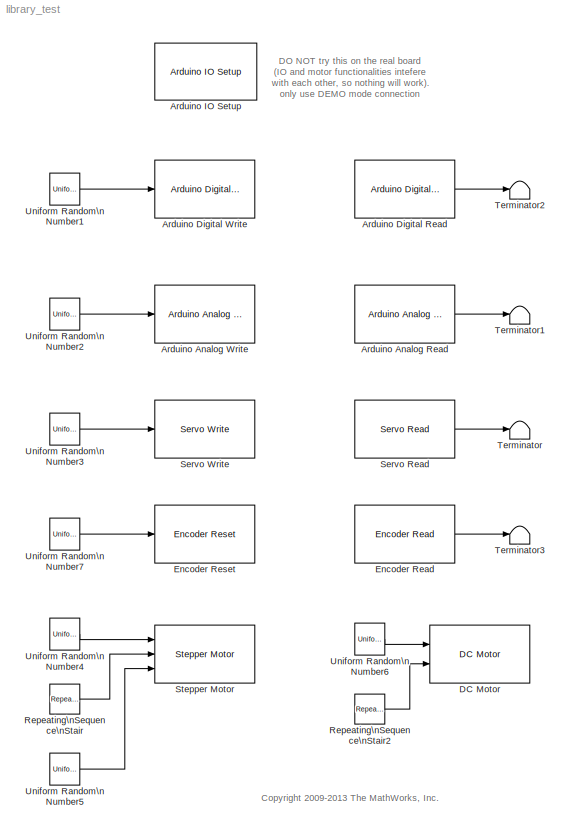
MODEL library_test
KIND model
BLOCK [Reference] Arduino Analog Read  REF=arduino_io_lib/Arduino Analog Read
  Ports = [0, 1]
  SourceBlock = arduino_io_lib/Arduino Analog Read
  SourceType = Arduino IO Analog Read
  T = 0.1
  arduinoPin = 0
  arduinoVar = Temporary arduino variable: Arduino1
BLOCK [Reference] Arduino Analog Write  REF=arduino_io_lib/Arduino Analog Write
  Ports = [1]
  SourceBlock = arduino_io_lib/Arduino Analog Write
  SourceType = Arduino IO analog Write (PWM)
  T = -1
  arduinoPin = 3
  arduinoVar = Temporary arduino variable: Arduino1
BLOCK [Reference] Arduino Digital Read  REF=arduino_io_lib/Arduino Digital Read
  Ports = [0, 1]
  SourceBlock = arduino_io_lib/Arduino Digital Read
  SourceType = Arduino IO digital read
  T = 0.1
  arduinoPin = 2
  arduinoVar = Temporary arduino variable: Arduino1
BLOCK [Reference] Arduino Digital Write  REF=arduino_io_lib/Arduino Digital Write
  Ports = [1]
  SourceBlock = arduino_io_lib/Arduino Digital Write
  SourceType = Arduino IO digital Write
  T = -1
  arduinoPin = 3
  arduinoVar = Temporary arduino variable: Arduino1
BLOCK [Reference] Arduino IO Setup  REF=arduino_io_lib/Arduino IO Setup
  Ports = []
  Priority = 3
  SourceBlock = arduino_io_lib/Arduino IO Setup
  SourceType = Arduino IO Setup
  arduinoVar = Temporary arduino variable: Arduino1
  comPort = DEMO
  workspaceVarName = a
BLOCK [Reference] DC Motor  REF=arduino_io_lib/DC Motor
  Ports = [2]
  SourceBlock = arduino_io_lib/DC Motor
  SourceType = Arduino IO DC Motor
  T = -1
  arduinoVar = Temporary arduino variable: Arduino1
  motorNum = 3
  sendOnChange = on
BLOCK [Reference] Encoder Read  REF=arduino_io_lib/Encoder Read
  DbDl = 0
  Ports = [0, 1]
  SourceBlock = arduino_io_lib/Encoder Read
  SourceType = Arduino IO Encoder Read
  T = 0.1
  arduinoVar = Temporary arduino variable: Arduino1
  encNum = 1
  pinA = 3
  pinB = 2
BLOCK [Reference] Encoder Reset  REF=arduino_io_lib/Encoder Reset
  Ports = [1]
  SourceBlock = arduino_io_lib/Encoder Reset
  SourceType = Arduino IO Encoder Reset
  T = 0.1
  arduinoVar = Temporary arduino variable: Arduino1
  encNum = 1
BLOCK [Reference] Repeating\nSequence\nStair  REF=simulink/Sources/Repeating\nSequence\nStair
  ConRadixGroup = Best Precision: Vector-wise
  LockScale = off
  OutDataType = fixdt(0,8)
  OutDataTypeStr = double
  OutMax = []
  OutMin = []
  OutScaling = 2^-12
  OutValues = [10 10 10 10 20 20 20 20 10].'
  OutputDataTypeScalingMode = double
  Ports = [0, 1]
  SourceBlock = simulink/Sources/Repeating\nSequence\nStair
  SourceType = Repeating Sequence Stair
  tsamp = -1
BLOCK [Reference] Repeating\nSequence\nStair2  REF=simulink/Sources/Repeating\nSequence\nStair
  ConRadixGroup = Best Precision: Vector-wise
  LockScale = off
  OutDataType = fixdt(0,8)
  OutDataTypeStr = double
  OutMax = []
  OutMin = []
  OutScaling = 2^-12
  OutValues = [10 10 20 20 20]
  OutputDataTypeScalingMode = double
  Ports = [0, 1]
  SourceBlock = simulink/Sources/Repeating\nSequence\nStair
  SourceType = Repeating Sequence Stair
  tsamp = -1
BLOCK [Reference] Servo Read  REF=arduino_io_lib/Servo Read
  Ports = [0, 1]
  SourceBlock = arduino_io_lib/Servo Read
  SourceType = Arduino IO Servo Read
  T = 0.1
  arduinoVar = Temporary arduino variable: Arduino1
  pinNum = 10
BLOCK [Reference] Servo Write  REF=arduino_io_lib/Servo Write
  Ports = [1]
  SourceBlock = arduino_io_lib/Servo Write
  SourceType = Arduino IO servo Write
  T = -1
  arduinoVar = Temporary arduino variable: Arduino1
  pinNum = 9
BLOCK [Reference] Stepper Motor  REF=arduino_io_lib/Stepper Motor
  Ports = [3]
  SourceBlock = arduino_io_lib/Stepper Motor
  SourceType = Arduino IO Stepper Motor
  T = -1
  arduinoVar = Temporary arduino variable: Arduino1
  motionStyle = single
  motorNum = 1
  sendOnChange = off
BLOCK [Terminator] Terminator
BLOCK [Terminator] Terminator1
BLOCK [Terminator] Terminator2
BLOCK [Terminator] Terminator3
BLOCK [UniformRandomNumber] Uniform Random\nNumber1
  Minimum = 0
  SampleTime = 0.1
BLOCK [UniformRandomNumber] Uniform Random\nNumber2
  Maximum = 255
  Minimum = 0
  SampleTime = 0.1
BLOCK [UniformRandomNumber] Uniform Random\nNumber3
  Maximum = 180
  Minimum = 0
  SampleTime = 0.1
BLOCK [UniformRandomNumber] Uniform Random\nNumber4
  SampleTime = 0.1
BLOCK [UniformRandomNumber] Uniform Random\nNumber5
  Maximum = 30
  Minimum = 0
  SampleTime = 0.1
BLOCK [UniformRandomNumber] Uniform Random\nNumber6
  SampleTime = 0.1
BLOCK [UniformRandomNumber] Uniform Random\nNumber7
  Maximum = 180
  Minimum = 0
  SampleTime = 0.1
ANNOTATION (root): <copyright redacted>
ANNOTATION (root): DO NOT try this on the real board\n(IO and motor functionalities intefere \nwith each other, so nothing will work). \nonly use DEMO mode connection
LINE Arduino Analog Read:1 -> Terminator1:1
LINE Arduino Digital Read:1 -> Terminator2:1
LINE Encoder Read:1 -> Terminator3:1
LINE Repeating\nSequence\nStair2:1 -> DC Motor:2
LINE Repeating\nSequence\nStair:1 -> Stepper Motor:2
LINE Servo Read:1 -> Terminator:1
LINE Uniform Random\nNumber1:1 -> Arduino Digital Write:1
LINE Uniform Random\nNumber2:1 -> Arduino Analog Write:1
LINE Uniform Random\nNumber3:1 -> Servo Write:1
LINE Uniform Random\nNumber4:1 -> Stepper Motor:1
LINE Uniform Random\nNumber5:1 -> Stepper Motor:3
LINE Uniform Random\nNumber6:1 -> DC Motor:1
LINE Uniform Random\nNumber7:1 -> Encoder Reset:1
